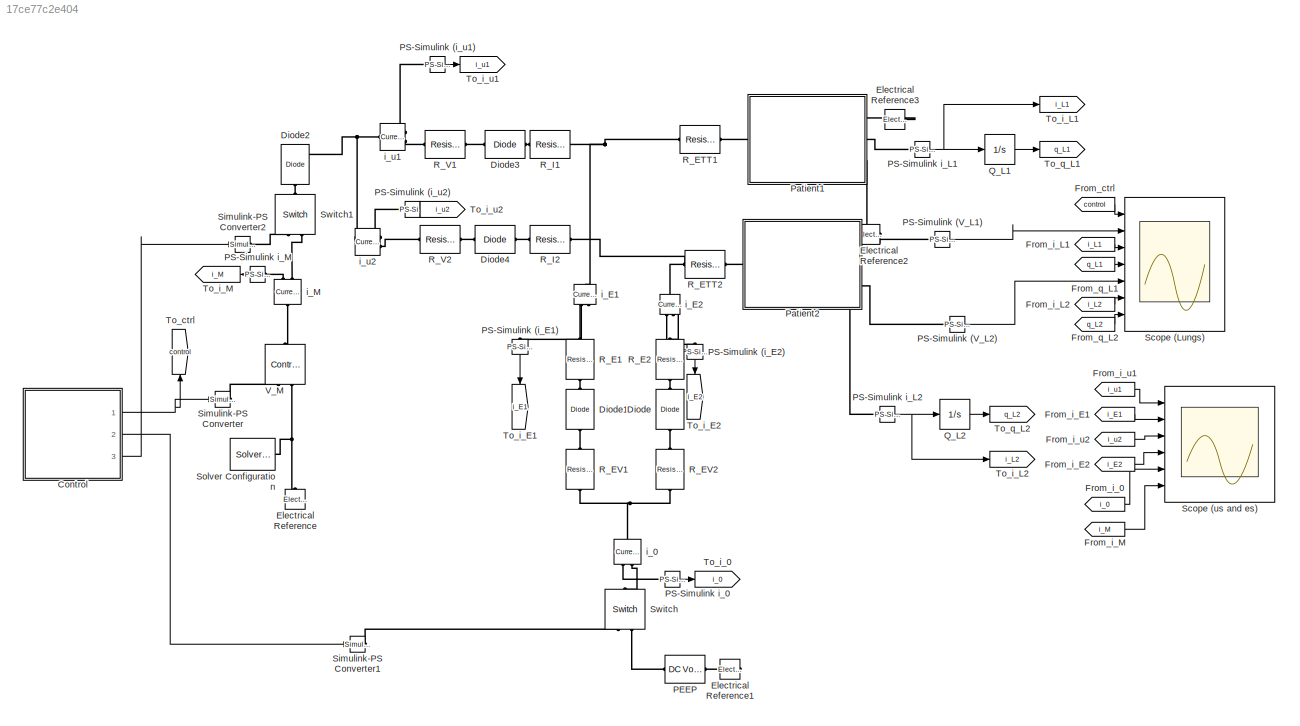
MODEL slx_17ce77c2e404
KIND model
CONFIG AbsTol = auto
CONFIG EnableMultiTasking = off
CONFIG FixedStep = auto
CONFIG MaxStep = auto
CONFIG MinStep = auto
CONFIG RelTol = 1e-3
CONFIG SampleTimeConstraint = Unconstrained
CONFIG Solver = VariableStepAuto
CONFIG SolverName = VariableStepAuto
CONFIG StartTime = 0.0
CONFIG StopTime = 10.0
WORKSPACE source: MATLAB code (in-file)
WORKSPACE v_M_exhale = 490
WORKSPACE v_M_inhale = 1471
WORKSPACE R_M = 0
WORKSPACE R_V1 = 5670
WORKSPACE R_V2 = 5670
WORKSPACE R_I1 = 5670
WORKSPACE R_I2 = 5670
WORKSPACE R_EV1 = 0
WORKSPACE R_EV2 = 0
WORKSPACE R_L1 = 196133
WORKSPACE R_L2 = 196133
WORKSPACE C_L1 = 5.50647e-7  (= 5.50647e-07)
WORKSPACE C_L2 = 5.50647e-7  (= 5.50647e-07)
WORKSPACE R_ETT1 = 784000
WORKSPACE R_ETT2 = 784000
WORKSPACE R_aL1 = 196133
WORKSPACE R_aL2 = 196133
WORKSPACE C_aL1 = 5.50647e-7  (= 5.50647e-07)
WORKSPACE C_aL2 = 5.50647e-7  (= 5.50647e-07)
WORKSPACE R_E1 = 5670
WORKSPACE R_E2 = 5670
WORKSPACE R_O = 0
WORKSPACE RR = 15
WORKSPACE I = 1
WORKSPACE E = 2
WORKSPACE IE_ratio = I/ E  (= 0.5)
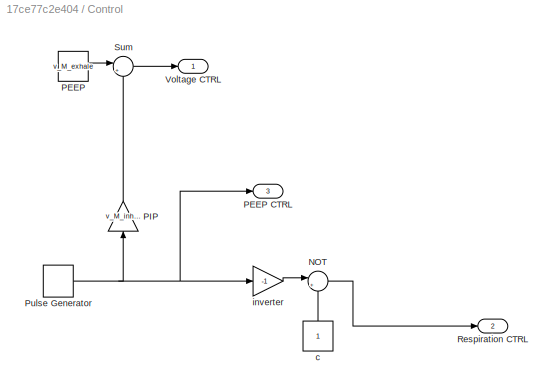
BLOCK [SubSystem] Control
  Ports = [0, 3]
  RequestExecContextInheritance = off
BLOCK [Sum] Control/NOT
  Inputs = |++
  NameLocation = top
  Ports = [2, 1]
BLOCK [Constant] Control/PEEP
  Value = v_M_exhale
BLOCK [Outport] Control/PEEP CTRL
  Port = 3
BLOCK [Gain] Control/PIP
  Gain = v_M_inhale-v_M_exhale
  NameLocation = right
BLOCK [DiscretePulseGenerator] Control/Pulse Generator
  Period = 60 / RR
  Ports = [0, 1]
  PulseType = Time based
  PulseWidth = IE_ratio/(IE_ratio+1)*100
BLOCK [Outport] Control/Respiration CTRL
  Port = 2
BLOCK [Sum] Control/Sum
  Inputs = |++
  NameLocation = top
  Ports = [2, 1]
BLOCK [Outport] Control/Voltage CTRL
BLOCK [Constant] Control/c
  NameLocation = right
BLOCK [Gain] Control/inverter
  Gain = -1
BLOCK [Reference] Diode  REF=fl_lib/Electrical/Electrical Elements/Diode
  NameLocation = left
  Ports = [0, 0, 0, 0, 0, 1, 1]
  SourceBlock = fl_lib/Electrical/Electrical Elements/Diode
  SourceProductBaseCode = SS
  SourceType = Diode
BLOCK [Reference] Diode1  REF=fl_lib/Electrical/Electrical Elements/Diode
  NameLocation = left
  Ports = [0, 0, 0, 0, 0, 1, 1]
  SourceBlock = fl_lib/Electrical/Electrical Elements/Diode
  SourceProductBaseCode = SS
  SourceType = Diode
BLOCK [Reference] Diode2  REF=fl_lib/Electrical/Electrical Elements/Diode
  NameLocation = right
  Ports = [0, 0, 0, 0, 0, 1, 1]
  SourceBlock = fl_lib/Electrical/Electrical Elements/Diode
  SourceProductBaseCode = SS
  SourceType = Diode
BLOCK [Reference] Diode3  REF=fl_lib/Electrical/Electrical Elements/Diode
  Ports = [0, 0, 0, 0, 0, 1, 1]
  SourceBlock = fl_lib/Electrical/Electrical Elements/Diode
  SourceProductBaseCode = SS
  SourceType = Diode
BLOCK [Reference] Diode4  REF=fl_lib/Electrical/Electrical Elements/Diode
  Ports = [0, 0, 0, 0, 0, 1, 1]
  SourceBlock = fl_lib/Electrical/Electrical Elements/Diode
  SourceProductBaseCode = SS
  SourceType = Diode
BLOCK [Reference] Electrical Reference  REF=fl_lib/Electrical/Electrical Elements/Electrical Reference
  NameLocation = right
  Ports = [0, 0, 0, 0, 0, 1]
  SourceBlock = fl_lib/Electrical/Electrical Elements/Electrical Reference
  SourceProductBaseCode = SS
  SourceType = Electrical Reference
BLOCK [Reference] Electrical Reference1  REF=fl_lib/Electrical/Electrical Elements/Electrical Reference
  NameLocation = top
  Ports = [0, 0, 0, 0, 0, 1]
  SourceBlock = fl_lib/Electrical/Electrical Elements/Electrical Reference
  SourceProductBaseCode = SS
  SourceType = Electrical Reference
BLOCK [Reference] Electrical Reference2  REF=fl_lib/Electrical/Electrical Elements/Electrical Reference
  NameLocation = top
  Ports = [0, 0, 0, 0, 0, 1]
  SourceBlock = fl_lib/Electrical/Electrical Elements/Electrical Reference
  SourceProductBaseCode = SS
  SourceType = Electrical Reference
BLOCK [Reference] Electrical Reference3  REF=fl_lib/Electrical/Electrical Elements/Electrical Reference
  NameLocation = top
  Ports = [0, 0, 0, 0, 0, 1]
  SourceBlock = fl_lib/Electrical/Electrical Elements/Electrical Reference
  SourceProductBaseCode = SS
  SourceType = Electrical Reference
BLOCK [From] From_ctrl
  GotoTag = control
BLOCK [From] From_i_0
  GotoTag = i_0
BLOCK [From] From_i_E1
  GotoTag = i_E1
BLOCK [From] From_i_E2
  GotoTag = i_E2
BLOCK [From] From_i_L1
  GotoTag = i_L1
BLOCK [From] From_i_L2
  GotoTag = i_L2
BLOCK [From] From_i_M
  GotoTag = i_M
BLOCK [From] From_i_u1
  GotoTag = i_u1
BLOCK [From] From_i_u2
  GotoTag = i_u2
BLOCK [From] From_q_L1
  GotoTag = q_L1
BLOCK [From] From_q_L2
  GotoTag = q_L2
BLOCK [Reference] PEEP  REF=fl_lib/Electrical/Electrical Sources/DC Voltage Source
  NameLocation = top
  Ports = [0, 0, 0, 0, 0, 1, 1]
  SourceBlock = fl_lib/Electrical/Electrical Sources/DC Voltage Source
  SourceProductBaseCode = SS
  SourceType = DC Voltage Source
BLOCK [Reference] PS-Simulink (V_L1)  REF=nesl_utility/PS-Simulink
Converter
  Ports = [0, 1, 0, 0, 0, 1]
  SourceBlock = nesl_utility/PS-Simulink\nConverter
  SourceProductBaseCode = SS
  SourceType = PS-Simulink\nConverter
BLOCK [Reference] PS-Simulink (V_L2)  REF=nesl_utility/PS-Simulink
Converter
  Ports = [0, 1, 0, 0, 0, 1]
  SourceBlock = nesl_utility/PS-Simulink\nConverter
  SourceProductBaseCode = SS
  SourceType = PS-Simulink\nConverter
BLOCK [Reference] PS-Simulink (i_E1)  REF=nesl_utility/PS-Simulink
Converter
  NameLocation = left
  Ports = [0, 1, 0, 0, 0, 1]
  SourceBlock = nesl_utility/PS-Simulink\nConverter
  SourceProductBaseCode = SS
  SourceType = PS-Simulink\nConverter
BLOCK [Reference] PS-Simulink (i_E2)  REF=nesl_utility/PS-Simulink
Converter
  NameLocation = left
  Ports = [0, 1, 0, 0, 0, 1]
  SourceBlock = nesl_utility/PS-Simulink\nConverter
  SourceProductBaseCode = SS
  SourceType = PS-Simulink\nConverter
BLOCK [Reference] PS-Simulink (i_u1)  REF=nesl_utility/PS-Simulink
Converter
  Ports = [0, 1, 0, 0, 0, 1]
  SourceBlock = nesl_utility/PS-Simulink\nConverter
  SourceProductBaseCode = SS
  SourceType = PS-Simulink\nConverter
BLOCK [Reference] PS-Simulink (i_u2)  REF=nesl_utility/PS-Simulink
Converter
  Ports = [0, 1, 0, 0, 0, 1]
  SourceBlock = nesl_utility/PS-Simulink\nConverter
  SourceProductBaseCode = SS
  SourceType = PS-Simulink\nConverter
BLOCK [Reference] PS-Simulink i_0  REF=nesl_utility/PS-Simulink
Converter
  Ports = [0, 1, 0, 0, 0, 1]
  SourceBlock = nesl_utility/PS-Simulink\nConverter
  SourceProductBaseCode = SS
  SourceType = PS-Simulink\nConverter
BLOCK [Reference] PS-Simulink i_L1  REF=nesl_utility/PS-Simulink
Converter
  Ports = [0, 1, 0, 0, 0, 1]
  SourceBlock = nesl_utility/PS-Simulink\nConverter
  SourceProductBaseCode = SS
  SourceType = PS-Simulink\nConverter
BLOCK [Reference] PS-Simulink i_L2  REF=nesl_utility/PS-Simulink
Converter
  Ports = [0, 1, 0, 0, 0, 1]
  SourceBlock = nesl_utility/PS-Simulink\nConverter
  SourceProductBaseCode = SS
  SourceType = PS-Simulink\nConverter
BLOCK [Reference] PS-Simulink i_M  REF=nesl_utility/PS-Simulink
Converter
  NameLocation = top
  Ports = [0, 1, 0, 0, 0, 1]
  SourceBlock = nesl_utility/PS-Simulink\nConverter
  SourceProductBaseCode = SS
  SourceType = PS-Simulink\nConverter
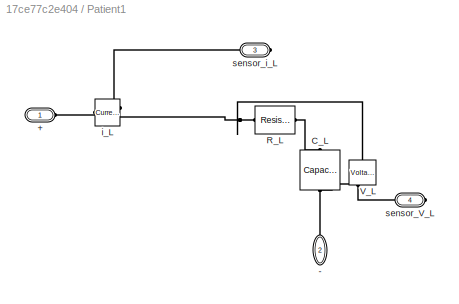
BLOCK [SubSystem] Patient1
  Ports = [0, 0, 0, 0, 0, 1, 3]
  RequestExecContextInheritance = off
BLOCK [PMIOPort] Patient1/+
  Side = Left
BLOCK [PMIOPort] Patient1/-
  NameLocation = right
  Port = 2
  Side = Right
BLOCK [Reference] Patient1/C_L  REF=fl_lib/Electrical/Electrical Elements/Capacitor
  NameLocation = left
  Ports = [0, 0, 0, 0, 0, 1, 1]
  SourceBlock = fl_lib/Electrical/Electrical Elements/Capacitor
  SourceProductBaseCode = SS
  SourceType = Capacitor
BLOCK [Reference] Patient1/R_L  REF=fl_lib/Electrical/Electrical Elements/Resistor
  Ports = [0, 0, 0, 0, 0, 1, 1]
  SourceBlock = fl_lib/Electrical/Electrical Elements/Resistor
  SourceProductBaseCode = SS
  SourceType = Resistor
BLOCK [Reference] Patient1/V_L  REF=fl_lib/Electrical/Electrical Sensors/Voltage Sensor
  NameLocation = right
  Ports = [0, 0, 0, 0, 0, 1, 2]
  SourceBlock = fl_lib/Electrical/Electrical Sensors/Voltage Sensor
  SourceProductBaseCode = SS
  SourceType = Voltage Sensor
BLOCK [Reference] Patient1/i_L  REF=fl_lib/Electrical/Electrical Sensors/Current Sensor
  Ports = [0, 0, 0, 0, 0, 1, 2]
  SourceBlock = fl_lib/Electrical/Electrical Sensors/Current Sensor
  SourceProductBaseCode = SS
  SourceType = Current Sensor
BLOCK [PMIOPort] Patient1/sensor_V_L
  Port = 4
  Side = Right
BLOCK [PMIOPort] Patient1/sensor_i_L
  Port = 3
  Side = Right
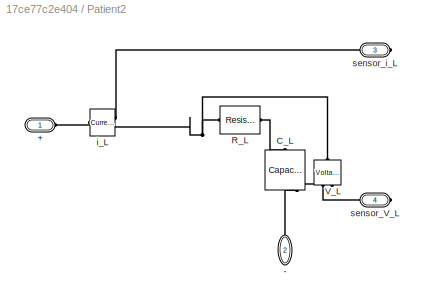
BLOCK [SubSystem] Patient2
  Ports = [0, 0, 0, 0, 0, 1, 3]
  RequestExecContextInheritance = off
BLOCK [PMIOPort] Patient2/+
  Side = Left
BLOCK [PMIOPort] Patient2/-
  NameLocation = right
  Port = 2
  Side = Right
BLOCK [Reference] Patient2/C_L  REF=fl_lib/Electrical/Electrical Elements/Capacitor
  NameLocation = left
  Ports = [0, 0, 0, 0, 0, 1, 1]
  SourceBlock = fl_lib/Electrical/Electrical Elements/Capacitor
  SourceProductBaseCode = SS
  SourceType = Capacitor
BLOCK [Reference] Patient2/R_L  REF=fl_lib/Electrical/Electrical Elements/Resistor
  Ports = [0, 0, 0, 0, 0, 1, 1]
  SourceBlock = fl_lib/Electrical/Electrical Elements/Resistor
  SourceProductBaseCode = SS
  SourceType = Resistor
BLOCK [Reference] Patient2/V_L  REF=fl_lib/Electrical/Electrical Sensors/Voltage Sensor
  NameLocation = right
  Ports = [0, 0, 0, 0, 0, 1, 2]
  SourceBlock = fl_lib/Electrical/Electrical Sensors/Voltage Sensor
  SourceProductBaseCode = SS
  SourceType = Voltage Sensor
BLOCK [Reference] Patient2/i_L  REF=fl_lib/Electrical/Electrical Sensors/Current Sensor
  Ports = [0, 0, 0, 0, 0, 1, 2]
  SourceBlock = fl_lib/Electrical/Electrical Sensors/Current Sensor
  SourceProductBaseCode = SS
  SourceType = Current Sensor
BLOCK [PMIOPort] Patient2/sensor_V_L
  Port = 4
  Side = Right
BLOCK [PMIOPort] Patient2/sensor_i_L
  Port = 3
  Side = Right
BLOCK [Integrator] Q_L1
  Ports = [1, 1]
BLOCK [Integrator] Q_L2
  Ports = [1, 1]
BLOCK [Reference] R_E1  REF=fl_lib/Electrical/Electrical Elements/Resistor
  NameLocation = left
  Ports = [0, 0, 0, 0, 0, 1, 1]
  SourceBlock = fl_lib/Electrical/Electrical Elements/Resistor
  SourceProductBaseCode = SS
  SourceType = Resistor
BLOCK [Reference] R_E2  REF=fl_lib/Electrical/Electrical Elements/Resistor
  NameLocation = left
  Ports = [0, 0, 0, 0, 0, 1, 1]
  SourceBlock = fl_lib/Electrical/Electrical Elements/Resistor
  SourceProductBaseCode = SS
  SourceType = Resistor
BLOCK [Reference] R_ETT1  REF=fl_lib/Electrical/Electrical Elements/Resistor
  Ports = [0, 0, 0, 0, 0, 1, 1]
  SourceBlock = fl_lib/Electrical/Electrical Elements/Resistor
  SourceProductBaseCode = SS
  SourceType = Resistor
BLOCK [Reference] R_ETT2  REF=fl_lib/Electrical/Electrical Elements/Resistor
  Ports = [0, 0, 0, 0, 0, 1, 1]
  SourceBlock = fl_lib/Electrical/Electrical Elements/Resistor
  SourceProductBaseCode = SS
  SourceType = Resistor
BLOCK [Reference] R_EV1  REF=fl_lib/Electrical/Electrical Elements/Resistor
  NameLocation = left
  Ports = [0, 0, 0, 0, 0, 1, 1]
  SourceBlock = fl_lib/Electrical/Electrical Elements/Resistor
  SourceProductBaseCode = SS
  SourceType = Resistor
BLOCK [Reference] R_EV2  REF=fl_lib/Electrical/Electrical Elements/Resistor
  NameLocation = left
  Ports = [0, 0, 0, 0, 0, 1, 1]
  SourceBlock = fl_lib/Electrical/Electrical Elements/Resistor
  SourceProductBaseCode = SS
  SourceType = Resistor
BLOCK [Reference] R_I1  REF=fl_lib/Electrical/Electrical Elements/Resistor
  Ports = [0, 0, 0, 0, 0, 1, 1]
  SourceBlock = fl_lib/Electrical/Electrical Elements/Resistor
  SourceProductBaseCode = SS
  SourceType = Resistor
BLOCK [Reference] R_I2  REF=fl_lib/Electrical/Electrical Elements/Resistor
  Ports = [0, 0, 0, 0, 0, 1, 1]
  SourceBlock = fl_lib/Electrical/Electrical Elements/Resistor
  SourceProductBaseCode = SS
  SourceType = Resistor
BLOCK [Reference] R_V1  REF=fl_lib/Electrical/Electrical Elements/Resistor
  Ports = [0, 0, 0, 0, 0, 1, 1]
  SourceBlock = fl_lib/Electrical/Electrical Elements/Resistor
  SourceProductBaseCode = SS
  SourceType = Resistor
BLOCK [Reference] R_V2  REF=fl_lib/Electrical/Electrical Elements/Resistor
  Ports = [0, 0, 0, 0, 0, 1, 1]
  SourceBlock = fl_lib/Electrical/Electrical Elements/Resistor
  SourceProductBaseCode = SS
  SourceType = Resistor
BLOCK [Scope] Scope (Lungs)
  Floating = off
  NumInputPorts = 7
  Ports = [7]
  ScopeSpecificationString = Simulink.scopes.TimeScopeBlockCfg('CurrentConfiguration', extmgr.ConfigurationSet(extmgr.Configuration('Core','General UI',true),extmgr.Configuration('Core','Source UI',true),extmgr.Configuration('Sources','WiredSimulink',true,'DataLogging',true,'DataLoggingSaveFormat','StructureWithTime'),extmgr.Configuration('Visuals','Time Domain',true,'SerializedDisplays',{struct('MinYLimReal','306.25','MaxYLi...<+5588ch>
BLOCK [Scope] Scope (us and es)
  Floating = off
  NumInputPorts = 6
  Ports = [6]
  ScopeSpecificationString = Simulink.scopes.TimeScopeBlockCfg('CurrentConfiguration', extmgr.ConfigurationSet(extmgr.Configuration('Core','General UI',true),extmgr.Configuration('Core','Source UI',true),extmgr.Configuration('Sources','WiredSimulink',true,'DataLoggingVariableName','ScopeAdvanced','DataLogging',true,'DataLoggingSaveFormat','StructureWithTime'),extmgr.Configuration('Visuals','Time Domain',true,'SerializedDispla...<+5376ch>
BLOCK [Reference] Simulink-PS Converter  REF=nesl_utility/Simulink-PS
Converter
  Ports = [1, 0, 0, 0, 0, 0, 1]
  SourceBlock = nesl_utility/Simulink-PS\nConverter
  SourceProductBaseCode = SS
  SourceType = Simulink-PS\nConverter
BLOCK [Reference] Simulink-PS Converter1  REF=nesl_utility/Simulink-PS
Converter
  Ports = [1, 0, 0, 0, 0, 0, 1]
  SourceBlock = nesl_utility/Simulink-PS\nConverter
  SourceProductBaseCode = SS
  SourceType = Simulink-PS\nConverter
BLOCK [Reference] Simulink-PS Converter2  REF=nesl_utility/Simulink-PS
Converter
  Ports = [1, 0, 0, 0, 0, 0, 1]
  SourceBlock = nesl_utility/Simulink-PS\nConverter
  SourceProductBaseCode = SS
  SourceType = Simulink-PS\nConverter
BLOCK [Reference] Solver Configuration  REF=nesl_utility/Solver
Configuration
  Ports = [0, 0, 0, 0, 0, 0, 1]
  SourceBlock = nesl_utility/Solver\nConfiguration
  SourceProductBaseCode = SS
  SourceType = Solver\nConfiguration
BLOCK [Reference] Switch  REF=fl_lib/Electrical/Electrical Elements/Switch
  NameLocation = right
  Ports = [0, 0, 0, 0, 0, 1, 2]
  SourceBlock = fl_lib/Electrical/Electrical Elements/Switch
  SourceProductBaseCode = SS
  SourceType = Switch
BLOCK [Reference] Switch1  REF=fl_lib/Electrical/Electrical Elements/Switch
  NameLocation = right
  Ports = [0, 0, 0, 0, 0, 1, 2]
  SourceBlock = fl_lib/Electrical/Electrical Elements/Switch
  SourceProductBaseCode = SS
  SourceType = Switch
BLOCK [Goto] To_ctrl
  GotoTag = control
  IconDisplay = Signal name
  NameLocation = right
BLOCK [Goto] To_i_0
  GotoTag = i_0
  IconDisplay = Signal name
BLOCK [Goto] To_i_E1
  GotoTag = i_E1
  IconDisplay = Signal name
  NameLocation = left
BLOCK [Goto] To_i_E2
  GotoTag = i_E2
  IconDisplay = Signal name
  NameLocation = left
BLOCK [Goto] To_i_L1
  GotoTag = i_L1
  IconDisplay = Signal name
BLOCK [Goto] To_i_L2
  GotoTag = i_L2
  IconDisplay = Signal name
BLOCK [Goto] To_i_M
  GotoTag = i_M
  IconDisplay = Signal name
  NameLocation = top
BLOCK [Goto] To_i_u1
  GotoTag = i_u1
  IconDisplay = Signal name
BLOCK [Goto] To_i_u2
  GotoTag = i_u2
  IconDisplay = Signal name
BLOCK [Goto] To_q_L1
  GotoTag = q_L1
  IconDisplay = Signal name
BLOCK [Goto] To_q_L2
  GotoTag = q_L2
  IconDisplay = Signal name
BLOCK [Reference] V_M  REF=fl_lib/Electrical/Electrical Sources/Controlled Voltage
Source
  NameLocation = right
  Ports = [0, 0, 0, 0, 0, 1, 2]
  SourceBlock = fl_lib/Electrical/Electrical Sources/Controlled Voltage\nSource
  SourceProductBaseCode = SS
  SourceType = Controlled Voltage\nSource
BLOCK [Reference] i_0  REF=fl_lib/Electrical/Electrical Sensors/Current Sensor
  NameLocation = left
  Ports = [0, 0, 0, 0, 0, 1, 2]
  SourceBlock = fl_lib/Electrical/Electrical Sensors/Current Sensor
  SourceProductBaseCode = SS
  SourceType = Current Sensor
BLOCK [Reference] i_E1  REF=fl_lib/Electrical/Electrical Sensors/Current Sensor
  NameLocation = left
  Ports = [0, 0, 0, 0, 0, 1, 2]
  SourceBlock = fl_lib/Electrical/Electrical Sensors/Current Sensor
  SourceProductBaseCode = SS
  SourceType = Current Sensor
BLOCK [Reference] i_E2  REF=fl_lib/Electrical/Electrical Sensors/Current Sensor
  NameLocation = left
  Ports = [0, 0, 0, 0, 0, 1, 2]
  SourceBlock = fl_lib/Electrical/Electrical Sensors/Current Sensor
  SourceProductBaseCode = SS
  SourceType = Current Sensor
BLOCK [Reference] i_M  REF=fl_lib/Electrical/Electrical Sensors/Current Sensor
  NameLocation = right
  Ports = [0, 0, 0, 0, 0, 1, 2]
  SourceBlock = fl_lib/Electrical/Electrical Sensors/Current Sensor
  SourceProductBaseCode = SS
  SourceType = Current Sensor
BLOCK [Reference] i_u1  REF=fl_lib/Electrical/Electrical Sensors/Current Sensor
  Ports = [0, 0, 0, 0, 0, 1, 2]
  SourceBlock = fl_lib/Electrical/Electrical Sensors/Current Sensor
  SourceProductBaseCode = SS
  SourceType = Current Sensor
BLOCK [Reference] i_u2  REF=fl_lib/Electrical/Electrical Sensors/Current Sensor
  Ports = [0, 0, 0, 0, 0, 1, 2]
  SourceBlock = fl_lib/Electrical/Electrical Sensors/Current Sensor
  SourceProductBaseCode = SS
  SourceType = Current Sensor
LINE Control/NOT:1 -> Control/Respiration CTRL:1
LINE Control/PEEP:1 -> Control/Sum:1
LINE Control/PIP:1 -> Control/Sum:2
NET Control/Pulse Generator:1 -> Control/PEEP CTRL:1, Control/PIP:1, Control/inverter:1
LINE Control/Sum:1 -> Control/Voltage CTRL:1
LINE Control/c:1 -> Control/NOT:2
LINE Control/inverter:1 -> Control/NOT:1
NET Control:1 -> Simulink-PS Converter:1, To_ctrl:1
LINE Control:2 -> Simulink-PS Converter1:1
LINE Control:3 -> Simulink-PS Converter2:1
LINE From_ctrl:1 -> Scope (Lungs):1
LINE From_i_0:1 -> Scope (us and es):5
LINE From_i_E1:1 -> Scope (us and es):2
LINE From_i_E2:1 -> Scope (us and es):4
LINE From_i_L1:1 -> Scope (Lungs):3
LINE From_i_L2:1 -> Scope (Lungs):6
LINE From_i_M:1 -> Scope (us and es):6
LINE From_i_u1:1 -> Scope (us and es):1
LINE From_i_u2:1 -> Scope (us and es):3
LINE From_q_L1:1 -> Scope (Lungs):4
LINE From_q_L2:1 -> Scope (Lungs):7
LINE PS-Simulink (V_L1):1 -> Scope (Lungs):2
LINE PS-Simulink (V_L2):1 -> Scope (Lungs):5
LINE PS-Simulink (i_E1):1 -> To_i_E1:1
LINE PS-Simulink (i_E2):1 -> To_i_E2:1
LINE PS-Simulink (i_u1):1 -> To_i_u1:1
LINE PS-Simulink (i_u2):1 -> To_i_u2:1
LINE PS-Simulink i_0:1 -> To_i_0:1
NET PS-Simulink i_L1:1 -> Q_L1:1, To_i_L1:1
NET PS-Simulink i_L2:1 -> Q_L2:1, To_i_L2:1
LINE PS-Simulink i_M:1 -> To_i_M:1
LINE Q_L1:1 -> To_q_L1:1
LINE Q_L2:1 -> To_q_L2:1
PLINE Diode1:LConn1 -- R_E1:RConn1
PLINE Diode1:RConn1 -- R_EV1:LConn1
PLINE Diode2:LConn1 -- Switch1:LConn1
PNET net1: Diode2:RConn1 -- i_u1:LConn1 -- i_u2:LConn1
PLINE Diode3:LConn1 -- R_V1:RConn1
PLINE Diode3:RConn1 -- R_I1:LConn1
PLINE Diode4:LConn1 -- R_V2:RConn1
PLINE Diode4:RConn1 -- R_I2:LConn1
PLINE Diode:LConn1 -- R_E2:RConn1
PLINE Diode:RConn1 -- R_EV2:LConn1
PLINE Electrical Reference1:LConn1 -- PEEP:RConn1
PLINE Electrical Reference2:LConn1 -- Patient2:RConn1
PLINE Electrical Reference3:LConn1 -- Patient1:RConn1
PNET net2: Electrical Reference:LConn1 -- Solver Configuration:RConn1 -- V_M:RConn2
PLINE PEEP:LConn1 -- Switch:RConn2
PLINE PS-Simulink (V_L1):LConn1 -- Patient1:RConn3
PLINE PS-Simulink (V_L2):LConn1 -- Patient2:RConn3
PLINE PS-Simulink (i_E1):LConn1 -- i_E1:RConn1
PLINE PS-Simulink (i_E2):LConn1 -- i_E2:RConn1
PLINE PS-Simulink (i_u1):LConn1 -- i_u1:RConn1
PLINE PS-Simulink (i_u2):LConn1 -- i_u2:RConn1
PLINE PS-Simulink i_0:LConn1 -- i_0:RConn1
PLINE PS-Simulink i_L1:LConn1 -- Patient1:RConn2
PLINE PS-Simulink i_L2:LConn1 -- Patient2:RConn2
PLINE PS-Simulink i_M:LConn1 -- i_M:RConn1
PLINE Patient1/+:RConn1 -- Patient1/i_L:LConn1
PNET net3: Patient1/-:RConn1 -- Patient1/C_L:RConn1 -- Patient1/V_L:RConn2
PLINE Patient1/C_L:LConn1 -- Patient1/R_L:RConn1
PNET net4: Patient1/R_L:LConn1 -- Patient1/V_L:LConn1 -- Patient1/i_L:RConn2
PLINE Patient1/V_L:RConn1 -- Patient1/sensor_V_L:RConn1
PLINE Patient1/i_L:RConn1 -- Patient1/sensor_i_L:RConn1
PLINE Patient1:LConn1 -- R_ETT1:RConn1
PLINE Patient2/+:RConn1 -- Patient2/i_L:LConn1
PNET net5: Patient2/-:RConn1 -- Patient2/C_L:RConn1 -- Patient2/V_L:RConn2
PLINE Patient2/C_L:LConn1 -- Patient2/R_L:RConn1
PNET net6: Patient2/R_L:LConn1 -- Patient2/V_L:LConn1 -- Patient2/i_L:RConn2
PLINE Patient2/V_L:RConn1 -- Patient2/sensor_V_L:RConn1
PLINE Patient2/i_L:RConn1 -- Patient2/sensor_i_L:RConn1
PLINE Patient2:LConn1 -- R_ETT2:RConn1
PLINE R_E1:LConn1 -- i_E1:RConn2
PLINE R_E2:LConn1 -- i_E2:RConn2
PNET net7: R_ETT1:LConn1 -- R_I1:RConn1 -- i_E1:LConn1
PNET net8: R_ETT2:LConn1 -- R_I2:RConn1 -- i_E2:LConn1
PNET net9: R_EV1:RConn1 -- R_EV2:RConn1 -- i_0:LConn1
PLINE R_V1:LConn1 -- i_u1:RConn2
PLINE R_V2:LConn1 -- i_u2:RConn2
PLINE Simulink-PS Converter1:RConn1 -- Switch:RConn1
PLINE Simulink-PS Converter2:RConn1 -- Switch1:RConn1
PLINE Simulink-PS Converter:RConn1 -- V_M:RConn1
PLINE Switch1:RConn2 -- i_M:RConn2
PLINE Switch:LConn1 -- i_0:RConn2
PLINE V_M:LConn1 -- i_M:LConn1
note: NET lines group one-source signal fan-out (src -> all destinations, sorted); 1:1 wires keep LINE; PNET lines group multi-terminal physical nets as a canonical sorted terminal list (undirected conserving connections); 2-terminal nets keep the pairwise PLINE form
